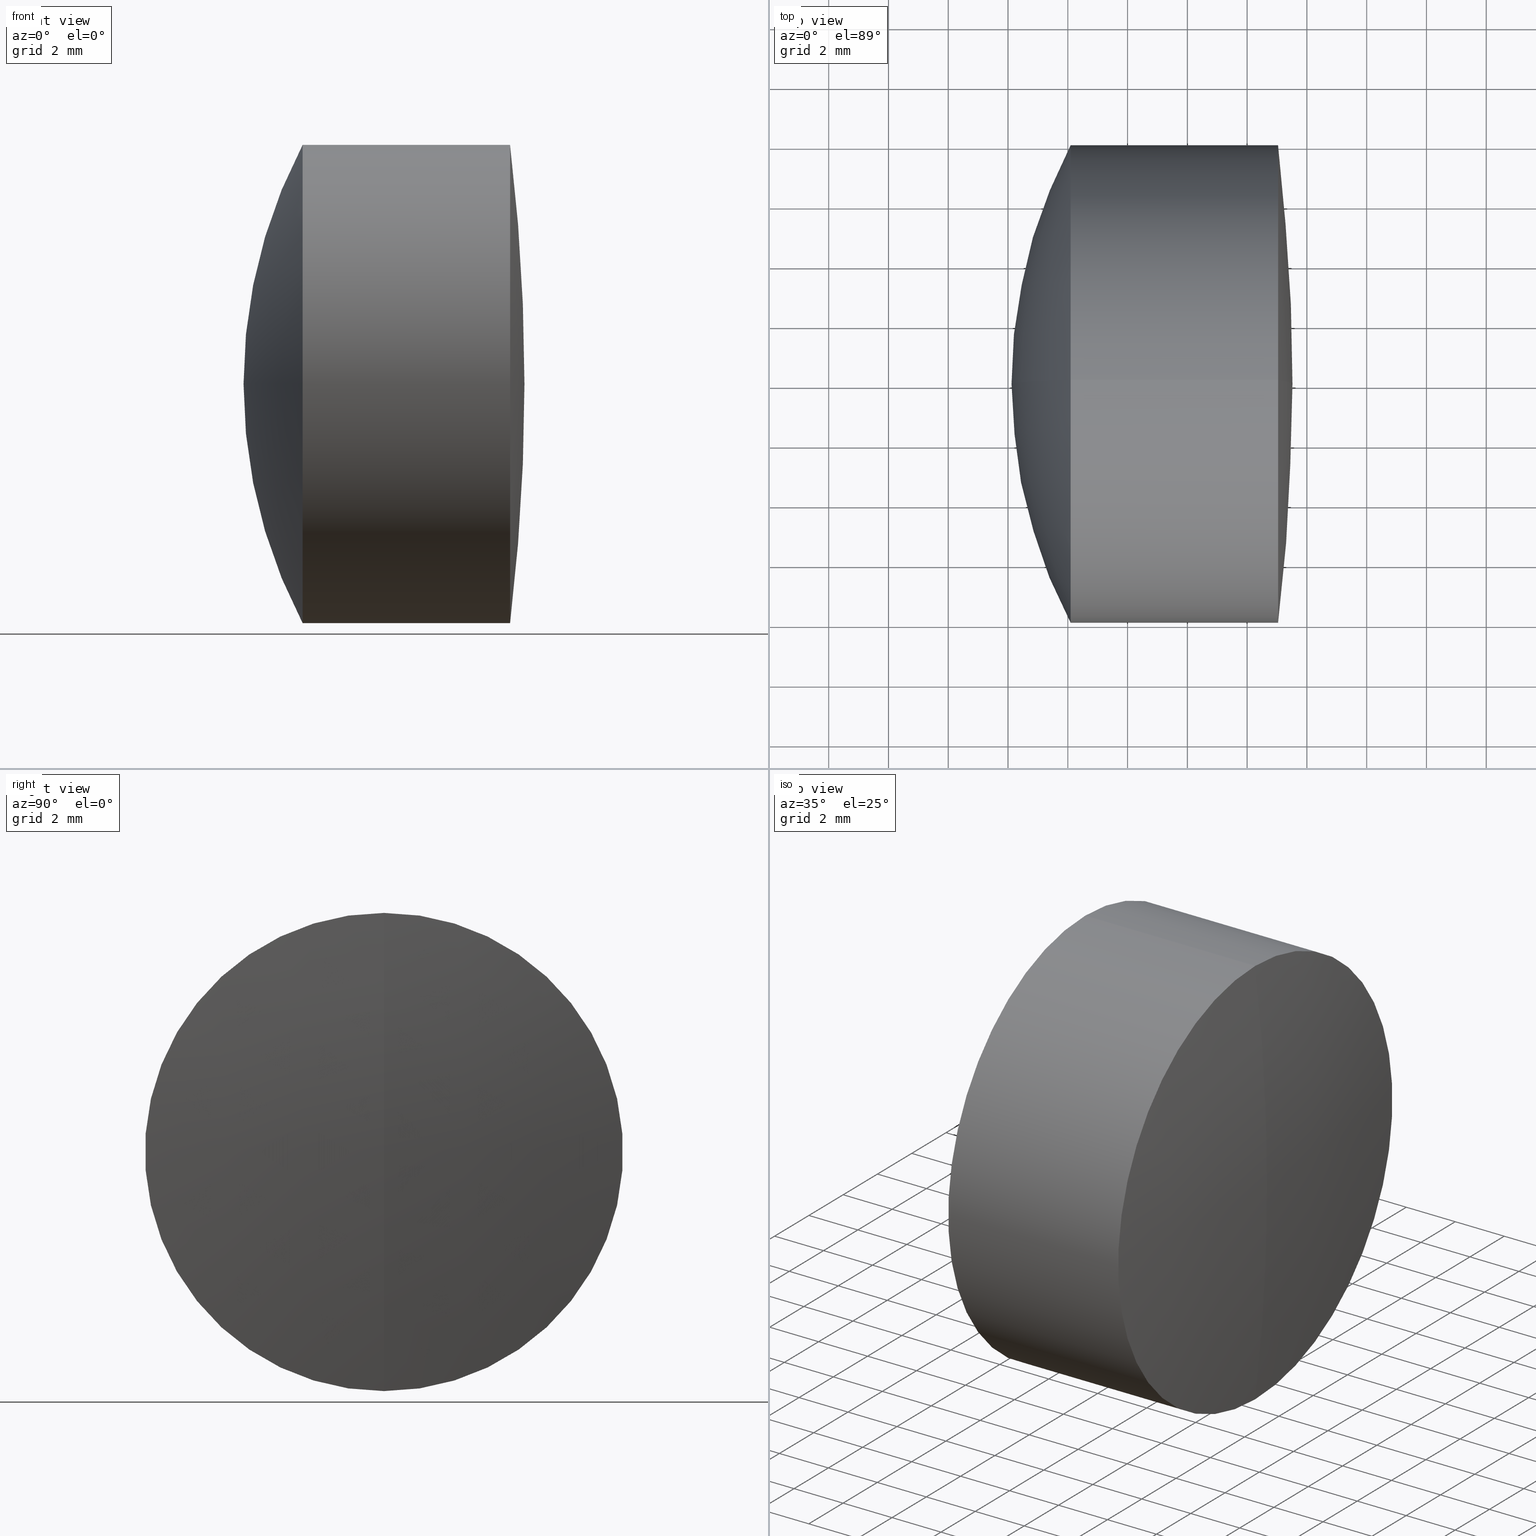
[diagram: canonical four-view strip — front | top / right | iso, engineering-drawing reading convention]
A machine part, canonical four-view strip (front | top / right | iso — engineering-drawing reading convention). The complete STEP part file that produces these views, byte-faithful:
ISO-10303-21;
HEADER;
FILE_DESCRIPTION (( 'STEP AP214' ),
    '1' );
FILE_NAME ('145030.STEP',
    '2019-05-11T02:57:41',
    ( 'user' ),
    ( '΢���й�' ),
    'SwSTEP 2.0',
    'SolidWorks 2016',
    '' );
FILE_SCHEMA (( 'AUTOMOTIVE_DESIGN' ));
ENDSEC;

DATA;
#1 = AXIS2_PLACEMENT_3D ( 'NONE', #264, #99, #319 ) ;
#2 = AXIS2_PLACEMENT_3D ( 'NONE', #43, #87, #6 ) ;
#3 = ORIENTED_EDGE ( 'NONE', *, *, #266, .T. ) ;
#4 = CIRCLE ( 'NONE', #20, 8.000000000000000000 ) ;
#5 = ORIENTED_EDGE ( 'NONE', *, *, #55, .T. ) ;
#6 = DIRECTION ( 'NONE',  ( 0.0000000000000000000, 0.0000000000000000000, -1.000000000000000000 ) ) ;
#7 = DIRECTION ( 'NONE',  ( 0.0000000000000000000, 0.0000000000000000000, 1.000000000000000000 ) ) ;
#8 = CYLINDRICAL_SURFACE ( 'NONE', #298, 8.000000000000000000 ) ;
#9 = DIRECTION ( 'NONE',  ( -1.000000000000000000, -0.0000000000000000000, -0.0000000000000000000 ) ) ;
#10 = AXIS2_PLACEMENT_3D ( 'NONE', #198, #161, #295 ) ;
#11 = CARTESIAN_POINT ( 'NONE',  ( 16.48846299245593300, 0.0000000000000000000, 0.0000000000000000000 ) ) ;
#12 = LINE ( 'NONE', #283, #121 ) ;
#13 = FILL_AREA_STYLE_COLOUR ( '', #33 ) ;
#14 = ORIENTED_EDGE ( 'NONE', *, *, #155, .T. ) ;
#15 = DIRECTION ( 'NONE',  ( 0.0000000000000000000, 0.0000000000000000000, -1.000000000000000000 ) ) ;
#16 = VERTEX_POINT ( 'NONE', #154 ) ;
#17 = DIRECTION ( 'NONE',  ( 0.0000000000000000000, 1.224646799147353200E-016, -1.000000000000000000 ) ) ;
#18 = FILL_AREA_STYLE ('',( #116 ) ) ;
#19 = EDGE_CURVE ( 'NONE', #105, #16, #52, .T. ) ;
#20 = AXIS2_PLACEMENT_3D ( 'NONE', #328, #137, #136 ) ;
#21 = SURFACE_SIDE_STYLE ('',( #108 ) ) ;
#22 = DIRECTION ( 'NONE',  ( -1.000000000000000000, -0.0000000000000000000, -0.0000000000000000000 ) ) ;
#23 = DIRECTION ( 'NONE',  ( -1.000000000000000000, -0.0000000000000000000, -0.0000000000000000000 ) ) ;
#24 = ADVANCED_FACE ( 'NONE', ( #134 ), #257, .T. ) ;
#25 = ORIENTED_EDGE ( 'NONE', *, *, #170, .T. ) ;
#26 = DIRECTION ( 'NONE',  ( -1.000000000000000000, -0.0000000000000000000, -0.0000000000000000000 ) ) ;
#27 = CARTESIAN_POINT ( 'NONE',  ( 21.03539995463979300, 0.0000000000000000000, 0.0000000000000000000 ) ) ;
#28 = CIRCLE ( 'NONE', #207, 7.999999999999992900 ) ;
#29 = FACE_OUTER_BOUND ( 'NONE', #346, .T. ) ;
#30 = FACE_OUTER_BOUND ( 'NONE', #98, .T. ) ;
#31 = AXIS2_PLACEMENT_3D ( 'NONE', #273, #250, #215 ) ;
#32 = CLOSED_SHELL ( 'NONE', ( #73, #96, #201, #49, #127, #343 ) ) ;
#33 = COLOUR_RGB ( '',1.000000000000000000, 1.000000000000000000, 1.000000000000000000 ) ;
#34 = UNCERTAINTY_MEASURE_WITH_UNIT (LENGTH_MEASURE( 1.000000000000000100E-005 ), #335, 'distance_accuracy_value', 'NONE');
#35 = EDGE_CURVE ( 'NONE', #153, #156, #230, .T. ) ;
#36 = DIRECTION ( 'NONE',  ( 0.0000000000000000000, 0.0000000000000000000, -1.000000000000000000 ) ) ;
#37 = AXIS2_PLACEMENT_3D ( 'NONE', #60, #81, #327 ) ;
#38 = CIRCLE ( 'NONE', #86, 66.68000000000000700 ) ;
#39 = ORIENTED_EDGE ( 'NONE', *, *, #179, .F. ) ;
#40 = ORIENTED_EDGE ( 'NONE', *, *, #302, .T. ) ;
#41 = DIRECTION ( 'NONE',  ( -1.000000000000000000, -0.0000000000000000000, -0.0000000000000000000 ) ) ;
#42 = SURFACE_SIDE_STYLE ('',( #340 ) ) ;
#43 = CARTESIAN_POINT ( 'NONE',  ( 29.29604347957312900, 0.0000000000000000000, 2.710505431219307800E-017 ) ) ;
#44 = CLOSED_SHELL ( 'NONE', ( #172, #231, #24, #290, #259, #151 ) ) ;
#45 =( NAMED_UNIT ( * ) SI_UNIT ( $, .STERADIAN. ) SOLID_ANGLE_UNIT ( ) );
#46 = SURFACE_STYLE_FILL_AREA ( #122 ) ;
#47 = UNCERTAINTY_MEASURE_WITH_UNIT (LENGTH_MEASURE( 1.000000000000000100E-005 ), #149, 'distance_accuracy_value', 'NONE');
#48 = DIRECTION ( 'NONE',  ( 0.0000000000000000000, 1.000000000000000000, 0.0000000000000000000 ) ) ;
#49 = ADVANCED_FACE ( 'NONE', ( #174 ), #59, .F. ) ;
#50 = ORIENTED_EDGE ( 'NONE', *, *, #254, .F. ) ;
#51 = DIRECTION ( 'NONE',  ( 0.0000000000000000000, 0.0000000000000000000, 1.000000000000000000 ) ) ;
#52 = CIRCLE ( 'NONE', #160, 8.000000000000000000 ) ;
#53 = DIRECTION ( 'NONE',  ( -1.000000000000000000, -0.0000000000000000000, -0.0000000000000000000 ) ) ;
#54 = CARTESIAN_POINT ( 'NONE',  ( 19.21704347957313200, 0.0000000000000000000, 7.745487404097199200E-016 ) ) ;
#55 = EDGE_CURVE ( 'NONE', #16, #158, #330, .T. ) ;
#56 = AXIS2_PLACEMENT_3D ( 'NONE', #211, #159, #176 ) ;
#57 = CARTESIAN_POINT ( 'NONE',  ( 16.48846299245593300, 0.0000000000000000000, 8.000000000000000000 ) ) ;
#58 = VERTEX_POINT ( 'NONE', #54 ) ;
#59 = SPHERICAL_SURFACE ( 'NONE', #1, 13.09200000000000200 ) ;
#60 = CARTESIAN_POINT ( 'NONE',  ( 6.125043479573127700, 0.0000000000000000000, -2.710505431213761100E-017 ) ) ;
#61 = SPHERICAL_SURFACE ( 'NONE', #342, 66.68000000000000700 ) ;
#62 = CARTESIAN_POINT ( 'NONE',  ( -45.16295652042687400, 0.0000000000000000000, 0.0000000000000000000 ) ) ;
#63 = SPHERICAL_SURFACE ( 'NONE', #72, 13.09200000000000200 ) ;
#64 = CARTESIAN_POINT ( 'NONE',  ( 14.09347655816146400, 0.0000000000000000000, 0.0000000000000000000 ) ) ;
#65 =( NAMED_UNIT ( * ) SI_UNIT ( $, .STERADIAN. ) SOLID_ANGLE_UNIT ( ) );
#66 = ORIENTED_EDGE ( 'NONE', *, *, #324, .T. ) ;
#67 = EDGE_LOOP ( 'NONE', ( #50, #317, #280 ) ) ;
#68 = DIRECTION ( 'NONE',  ( 0.0000000000000000000, 0.0000000000000000000, 1.000000000000000000 ) ) ;
#69 = SURFACE_SIDE_STYLE ('',( #46 ) ) ;
#70 = CARTESIAN_POINT ( 'NONE',  ( 0.0000000000000000000, 0.0000000000000000000, 0.0000000000000000000 ) ) ;
#71 = EDGE_CURVE ( 'NONE', #153, #272, #180, .T. ) ;
#72 = AXIS2_PLACEMENT_3D ( 'NONE', #232, #299, #248 ) ;
#73 = ADVANCED_FACE ( 'NONE', ( #129 ), #190, .T. ) ;
#74 = FACE_OUTER_BOUND ( 'NONE', #67, .T. ) ;
#75 = ORIENTED_EDGE ( 'NONE', *, *, #139, .T. ) ;
#76 = VECTOR ( 'NONE', #41, 1000.000000000000000 ) ;
#77 = EDGE_LOOP ( 'NONE', ( #113, #80, #162 ) ) ;
#78 =( GEOMETRIC_REPRESENTATION_CONTEXT ( 3 ) GLOBAL_UNCERTAINTY_ASSIGNED_CONTEXT ( ( #316 ) ) GLOBAL_UNIT_ASSIGNED_CONTEXT ( ( #309, #225, #45 ) ) REPRESENTATION_CONTEXT ( 'NONE', 'WORKASPACE' ) );
#79 = ORIENTED_EDGE ( 'NONE', *, *, #139, .F. ) ;
#80 = ORIENTED_EDGE ( 'NONE', *, *, #254, .T. ) ;
#81 = DIRECTION ( 'NONE',  ( 0.0000000000000000000, 1.000000000000000000, 0.0000000000000000000 ) ) ;
#82 = CARTESIAN_POINT ( 'NONE',  ( 21.03539995463979300, 9.797174393178819700E-016, -7.999999999999992900 ) ) ;
#83 = PRODUCT_DEFINITION_CONTEXT ( 'detailed design', #169, 'design' ) ;
#84 = LINE ( 'NONE', #107, #76 ) ;
#85 = AXIS2_PLACEMENT_3D ( 'NONE', #322, #293, #36 ) ;
#86 = AXIS2_PLACEMENT_3D ( 'NONE', #241, #146, #184 ) ;
#87 = DIRECTION ( 'NONE',  ( -0.0000000000000000000, -1.000000000000000000, -0.0000000000000000000 ) ) ;
#88 = SURFACE_STYLE_USAGE ( .BOTH. , #21 ) ;
#89 = DIRECTION ( 'NONE',  ( -1.000000000000000000, -0.0000000000000000000, -0.0000000000000000000 ) ) ;
#90 = PRODUCT_RELATED_PRODUCT_CATEGORY ( 'part', '', ( #214 ) ) ;
#91 = DIRECTION ( 'NONE',  ( 0.0000000000000000000, -1.224646799147353200E-016, 1.000000000000000000 ) ) ;
#92 = CARTESIAN_POINT ( 'NONE',  ( 21.03539995463979300, 0.0000000000000000000, 0.0000000000000000000 ) ) ;
#93 = DIRECTION ( 'NONE',  ( 0.0000000000000000000, -1.000000000000000000, 0.0000000000000000000 ) ) ;
#94 = CIRCLE ( 'NONE', #171, 8.000000000000000000 ) ;
#95 = DIRECTION ( 'NONE',  ( -0.0000000000000000000, 1.000000000000000000, 1.224646799147353200E-016 ) ) ;
#96 = ADVANCED_FACE ( 'NONE', ( #117 ), #103, .T. ) ;
#97 = ORIENTED_EDGE ( 'NONE', *, *, #194, .T. ) ;
#98 = EDGE_LOOP ( 'NONE', ( #271, #25, #282 ) ) ;
#99 = DIRECTION ( 'NONE',  ( 0.0000000000000000000, 1.000000000000000000, 0.0000000000000000000 ) ) ;
#100 = PRODUCT_DEFINITION_SHAPE ( 'NONE', 'NONE',  #152 ) ;
#101 = EDGE_CURVE ( 'NONE', #204, #165, #110, .T. ) ;
#102 = AXIS2_PLACEMENT_3D ( 'NONE', #106, #95, #91 ) ;
#103 = CYLINDRICAL_SURFACE ( 'NONE', #187, 7.999999999999996400 ) ;
#104 = ORIENTED_EDGE ( 'NONE', *, *, #288, .F. ) ;
#105 = VERTEX_POINT ( 'NONE', #287 ) ;
#106 = CARTESIAN_POINT ( 'NONE',  ( 6.125043479573127700, 0.0000000000000000000, -2.710505431213761100E-017 ) ) ;
#107 = CARTESIAN_POINT ( 'NONE',  ( -9.702612178336682500, 9.797174393178825700E-016, -8.000000000000000000 ) ) ;
#108 = SURFACE_STYLE_FILL_AREA ( #337 ) ;
#109 = EDGE_LOOP ( 'NONE', ( #144, #209, #347, #189 ) ) ;
#110 = CIRCLE ( 'NONE', #236, 13.09200000000000200 ) ;
#111 = CARTESIAN_POINT ( 'NONE',  ( -9.702612178336682500, 0.0000000000000000000, 0.0000000000000000000 ) ) ;
#112 = DIRECTION ( 'NONE',  ( 0.0000000000000000000, 0.0000000000000000000, 1.000000000000000000 ) ) ;
#113 = ORIENTED_EDGE ( 'NONE', *, *, #101, .F. ) ;
#114 = MECHANICAL_DESIGN_GEOMETRIC_PRESENTATION_REPRESENTATION (  '', ( #182 ), #78 ) ;
#115 = MANIFOLD_SOLID_BREP ( '��ת1', #44 ) ;
#116 = FILL_AREA_STYLE_COLOUR ( '', #276 ) ;
#117 = FACE_OUTER_BOUND ( 'NONE', #109, .T. ) ;
#118 =( NAMED_UNIT ( * ) PLANE_ANGLE_UNIT ( ) SI_UNIT ( $, .RADIAN. ) );
#119 = ORIENTED_EDGE ( 'NONE', *, *, #324, .F. ) ;
#120 = APPLICATION_PROTOCOL_DEFINITION ( 'draft international standard', 'automotive_design', 1998, #169 ) ;
#121 = VECTOR ( 'NONE', #278, 1000.000000000000000 ) ;
#122 = FILL_AREA_STYLE ('',( #338 ) ) ;
#123 = AXIS2_PLACEMENT_3D ( 'NONE', #62, #246, #191 ) ;
#124 = AXIS2_PLACEMENT_3D ( 'NONE', #175, #167, #166 ) ;
#125 = DIRECTION ( 'NONE',  ( -1.000000000000000000, -0.0000000000000000000, -0.0000000000000000000 ) ) ;
#126 = ORIENTED_EDGE ( 'NONE', *, *, #266, .F. ) ;
#127 = ADVANCED_FACE ( 'NONE', ( #243 ), #183, .T. ) ;
#128 = CARTESIAN_POINT ( 'NONE',  ( 21.51704347957313200, 0.0000000000000000000, 4.082972428357275800E-015 ) ) ;
#129 = FACE_OUTER_BOUND ( 'NONE', #333, .T. ) ;
#130 = VERTEX_POINT ( 'NONE', #315 ) ;
#131 = VERTEX_POINT ( 'NONE', #314 ) ;
#132 = CARTESIAN_POINT ( 'NONE',  ( 14.09347655816146400, 0.0000000000000000000, 0.0000000000000000000 ) ) ;
#133 = FACE_OUTER_BOUND ( 'NONE', #228, .T. ) ;
#134 = FACE_OUTER_BOUND ( 'NONE', #326, .T. ) ;
#135 = EDGE_LOOP ( 'NONE', ( #267, #277, #75, #126 ) ) ;
#136 = DIRECTION ( 'NONE',  ( 0.0000000000000000000, 0.0000000000000000000, 1.000000000000000000 ) ) ;
#137 = DIRECTION ( 'NONE',  ( -1.000000000000000000, -0.0000000000000000000, -0.0000000000000000000 ) ) ;
#138 = UNCERTAINTY_MEASURE_WITH_UNIT (LENGTH_MEASURE( 1.000000000000000100E-005 ), #199, 'distance_accuracy_value', 'NONE');
#139 = EDGE_CURVE ( 'NONE', #165, #105, #186, .T. ) ;
#140 = MECHANICAL_DESIGN_GEOMETRIC_PRESENTATION_REPRESENTATION (  '', ( #227 ), #229 ) ;
#141 = CARTESIAN_POINT ( 'NONE',  ( 6.125043479573127700, 0.0000000000000000000, -2.710505431213761100E-017 ) ) ;
#142 =( NAMED_UNIT ( * ) SI_UNIT ( $, .STERADIAN. ) SOLID_ANGLE_UNIT ( ) );
#143 = ORIENTED_EDGE ( 'NONE', *, *, #155, .F. ) ;
#144 = ORIENTED_EDGE ( 'NONE', *, *, #71, .T. ) ;
#145 = SURFACE_STYLE_USAGE ( .BOTH. , #42 ) ;
#146 = DIRECTION ( 'NONE',  ( -0.0000000000000000000, 1.000000000000000000, 1.224646799147353200E-016 ) ) ;
#147 = CARTESIAN_POINT ( 'NONE',  ( 6.125043479573127700, 0.0000000000000000000, -2.710505431213761100E-017 ) ) ;
#148 = CIRCLE ( 'NONE', #196, 17.17900000000000200 ) ;
#149 =( LENGTH_UNIT ( ) NAMED_UNIT ( * ) SI_UNIT ( .MILLI., .METRE. ) );
#150 =( NAMED_UNIT ( * ) PLANE_ANGLE_UNIT ( ) SI_UNIT ( $, .RADIAN. ) );
#151 = ADVANCED_FACE ( 'NONE', ( #74 ), #63, .T. ) ;
#152 = PRODUCT_DEFINITION ( 'δ֪', '', #233, #83 ) ;
#153 = VERTEX_POINT ( 'NONE', #262 ) ;
#154 = CARTESIAN_POINT ( 'NONE',  ( 14.09347655816146400, 0.0000000000000000000, -8.000000000000000000 ) ) ;
#155 = EDGE_CURVE ( 'NONE', #323, #272, #38, .T. ) ;
#156 = VERTEX_POINT ( 'NONE', #57 ) ;
#157 = DIRECTION ( 'NONE',  ( -1.000000000000000000, -0.0000000000000000000, -0.0000000000000000000 ) ) ;
#158 = VERTEX_POINT ( 'NONE', #270 ) ;
#159 = DIRECTION ( 'NONE',  ( -1.000000000000000000, -0.0000000000000000000, -0.0000000000000000000 ) ) ;
#160 = AXIS2_PLACEMENT_3D ( 'NONE', #132, #297, #234 ) ;
#161 = DIRECTION ( 'NONE',  ( 0.0000000000000000000, 1.000000000000000000, -0.0000000000000000000 ) ) ;
#162 = ORIENTED_EDGE ( 'NONE', *, *, #212, .F. ) ;
#163 = CARTESIAN_POINT ( 'NONE',  ( -45.16295652042687400, 0.0000000000000000000, 0.0000000000000000000 ) ) ;
#164 = PRESENTATION_LAYER_ASSIGNMENT (  '', '', ( #182 ) ) ;
#165 = VERTEX_POINT ( 'NONE', #217 ) ;
#166 = DIRECTION ( 'NONE',  ( 0.0000000000000000000, 0.0000000000000000000, -1.000000000000000000 ) ) ;
#167 = DIRECTION ( 'NONE',  ( 0.0000000000000000000, -1.000000000000000000, 0.0000000000000000000 ) ) ;
#168 = FACE_OUTER_BOUND ( 'NONE', #178, .T. ) ;
#169 = APPLICATION_CONTEXT ( 'automotive_design' ) ;
#170 = EDGE_CURVE ( 'NONE', #58, #131, #269, .T. ) ;
#171 = AXIS2_PLACEMENT_3D ( 'NONE', #64, #53, #51 ) ;
#172 = ADVANCED_FACE ( 'NONE', ( #303 ), #238, .T. ) ;
#173 = EDGE_LOOP ( 'NONE', ( #216, #202, #97 ) ) ;
#174 = FACE_OUTER_BOUND ( 'NONE', #173, .T. ) ;
#175 = CARTESIAN_POINT ( 'NONE',  ( 6.125043479573127700, 0.0000000000000000000, -2.710505431213761100E-017 ) ) ;
#176 = DIRECTION ( 'NONE',  ( 0.0000000000000000000, 0.0000000000000000000, 1.000000000000000000 ) ) ;
#177 = SHAPE_DEFINITION_REPRESENTATION ( #100, #296 ) ;
#178 = EDGE_LOOP ( 'NONE', ( #143, #294, #119 ) ) ;
#179 = EDGE_CURVE ( 'NONE', #272, #131, #12, .T. ) ;
#180 = CIRCLE ( 'NONE', #245, 7.999999999999992900 ) ;
#181 = ORIENTED_EDGE ( 'NONE', *, *, #71, .F. ) ;
#182 = STYLED_ITEM ( 'NONE', ( #291 ), #296 ) ;
#183 = CYLINDRICAL_SURFACE ( 'NONE', #289, 7.999999999999996400 ) ;
#184 = DIRECTION ( 'NONE',  ( 0.0000000000000000000, -1.224646799147353200E-016, 1.000000000000000000 ) ) ;
#185 = ORIENTED_EDGE ( 'NONE', *, *, #212, .T. ) ;
#186 = LINE ( 'NONE', #197, #200 ) ;
#187 = AXIS2_PLACEMENT_3D ( 'NONE', #226, #157, #223 ) ;
#188 = AXIS2_PLACEMENT_3D ( 'NONE', #11, #9, #7 ) ;
#189 = ORIENTED_EDGE ( 'NONE', *, *, #35, .F. ) ;
#190 = SPHERICAL_SURFACE ( 'NONE', #123, 66.68000000000000700 ) ;
#191 = DIRECTION ( 'NONE',  ( 0.0000000000000000000, 0.0000000000000000000, 1.000000000000000000 ) ) ;
#192 = DIRECTION ( 'NONE',  ( 0.0000000000000000000, -1.000000000000000000, -1.224646799147353200E-016 ) ) ;
#193 = APPLICATION_CONTEXT ( 'automotive_design' ) ;
#194 = EDGE_CURVE ( 'NONE', #156, #131, #301, .T. ) ;
#195 = CIRCLE ( 'NONE', #124, 13.09200000000000200 ) ;
#196 = AXIS2_PLACEMENT_3D ( 'NONE', #221, #192, #17 ) ;
#197 = CARTESIAN_POINT ( 'NONE',  ( -9.702612178336682500, 0.0000000000000000000, 8.000000000000000000 ) ) ;
#198 = CARTESIAN_POINT ( 'NONE',  ( 29.29604347957312900, 0.0000000000000000000, 2.710505431219307800E-017 ) ) ;
#199 =( LENGTH_UNIT ( ) NAMED_UNIT ( * ) SI_UNIT ( .MILLI., .METRE. ) );
#200 = VECTOR ( 'NONE', #23, 1000.000000000000000 ) ;
#201 = ADVANCED_FACE ( 'NONE', ( #30 ), #344, .F. ) ;
#202 = ORIENTED_EDGE ( 'NONE', *, *, #206, .T. ) ;
#203 = CARTESIAN_POINT ( 'NONE',  ( 19.21704347957313200, 0.0000000000000000000, 7.745487404097199200E-016 ) ) ;
#204 = VERTEX_POINT ( 'NONE', #203 ) ;
#205 = CARTESIAN_POINT ( 'NONE',  ( -0.5519199926577972300, 0.0000000000000000000, 7.999999999999996400 ) ) ;
#206 = EDGE_CURVE ( 'NONE', #58, #156, #195, .T. ) ;
#207 = AXIS2_PLACEMENT_3D ( 'NONE', #92, #251, #68 ) ;
#208 = COLOUR_RGB ( '',1.000000000000000000, 1.000000000000000000, 1.000000000000000000 ) ;
#209 = ORIENTED_EDGE ( 'NONE', *, *, #179, .T. ) ;
#210 = ORIENTED_EDGE ( 'NONE', *, *, #19, .F. ) ;
#211 = CARTESIAN_POINT ( 'NONE',  ( -9.702612178336682500, 0.0000000000000000000, 0.0000000000000000000 ) ) ;
#212 = EDGE_CURVE ( 'NONE', #165, #130, #4, .T. ) ;
#213 = AXIS2_PLACEMENT_3D ( 'NONE', #249, #89, #220 ) ;
#214 = PRODUCT ( '145030', '145030', '', ( #310 ) ) ;
#215 = DIRECTION ( 'NONE',  ( 0.0000000000000000000, 0.0000000000000000000, 1.000000000000000000 ) ) ;
#216 = ORIENTED_EDGE ( 'NONE', *, *, #170, .F. ) ;
#217 = CARTESIAN_POINT ( 'NONE',  ( 16.48846299245593300, 0.0000000000000000000, 8.000000000000000000 ) ) ;
#218 = DIRECTION ( 'NONE',  ( 0.0000000000000000000, 0.0000000000000000000, 1.000000000000000000 ) ) ;
#219 = ORIENTED_EDGE ( 'NONE', *, *, #341, .F. ) ;
#220 = DIRECTION ( 'NONE',  ( 0.0000000000000000000, 0.0000000000000000000, 1.000000000000000000 ) ) ;
#221 = CARTESIAN_POINT ( 'NONE',  ( 29.29604347957312900, 0.0000000000000000000, 2.710505431219307800E-017 ) ) ;
#222 = DIRECTION ( 'NONE',  ( 0.0000000000000000000, 0.0000000000000000000, 1.000000000000000000 ) ) ;
#223 = DIRECTION ( 'NONE',  ( 0.0000000000000000000, 0.0000000000000000000, 1.000000000000000000 ) ) ;
#224 = CYLINDRICAL_SURFACE ( 'NONE', #56, 8.000000000000000000 ) ;
#225 =( NAMED_UNIT ( * ) PLANE_ANGLE_UNIT ( ) SI_UNIT ( $, .RADIAN. ) );
#226 = CARTESIAN_POINT ( 'NONE',  ( -0.5519199926577972300, 0.0000000000000000000, 0.0000000000000000000 ) ) ;
#227 = STYLED_ITEM ( 'NONE', ( #244 ), #115 ) ;
#228 = EDGE_LOOP ( 'NONE', ( #258, #263, #5 ) ) ;
#229 =( GEOMETRIC_REPRESENTATION_CONTEXT ( 3 ) GLOBAL_UNCERTAINTY_ASSIGNED_CONTEXT ( ( #47 ) ) GLOBAL_UNIT_ASSIGNED_CONTEXT ( ( #149, #150, #65 ) ) REPRESENTATION_CONTEXT ( 'NONE', 'WORKASPACE' ) );
#230 = LINE ( 'NONE', #205, #260 ) ;
#231 = ADVANCED_FACE ( 'NONE', ( #29 ), #224, .T. ) ;
#232 = CARTESIAN_POINT ( 'NONE',  ( 6.125043479573127700, 0.0000000000000000000, -2.710505431213761100E-017 ) ) ;
#233 = PRODUCT_DEFINITION_FORMATION_WITH_SPECIFIED_SOURCE ( '�κ�', '', #214, .NOT_KNOWN. ) ;
#234 = DIRECTION ( 'NONE',  ( 0.0000000000000000000, 0.0000000000000000000, 1.000000000000000000 ) ) ;
#235 = CIRCLE ( 'NONE', #102, 13.09200000000000200 ) ;
#236 = AXIS2_PLACEMENT_3D ( 'NONE', #147, #93, #311 ) ;
#237 = PRESENTATION_LAYER_ASSIGNMENT (  '', '', ( #227 ) ) ;
#238 = SPHERICAL_SURFACE ( 'NONE', #37, 13.09200000000000200 ) ;
#239 = AXIS2_PLACEMENT_3D ( 'NONE', #70, #285, #286 ) ;
#240 = CARTESIAN_POINT ( 'NONE',  ( 16.48846299245593300, 0.0000000000000000000, 0.0000000000000000000 ) ) ;
#241 = CARTESIAN_POINT ( 'NONE',  ( -45.16295652042687400, 0.0000000000000000000, 0.0000000000000000000 ) ) ;
#242 = PRESENTATION_STYLE_ASSIGNMENT (( #88 ) ) ;
#243 = FACE_OUTER_BOUND ( 'NONE', #336, .T. ) ;
#244 = PRESENTATION_STYLE_ASSIGNMENT (( #308 ) ) ;
#245 = AXIS2_PLACEMENT_3D ( 'NONE', #27, #22, #339 ) ;
#246 = DIRECTION ( 'NONE',  ( 0.0000000000000000000, 1.000000000000000000, 0.0000000000000000000 ) ) ;
#247 = MECHANICAL_DESIGN_GEOMETRIC_PRESENTATION_REPRESENTATION (  '', ( #268 ), #325 ) ;
#248 = DIRECTION ( 'NONE',  ( 0.0000000000000000000, 0.0000000000000000000, 1.000000000000000000 ) ) ;
#249 = CARTESIAN_POINT ( 'NONE',  ( 16.48846299245593300, 0.0000000000000000000, 0.0000000000000000000 ) ) ;
#250 = DIRECTION ( 'NONE',  ( 0.0000000000000000000, 1.000000000000000000, 0.0000000000000000000 ) ) ;
#251 = DIRECTION ( 'NONE',  ( -1.000000000000000000, -0.0000000000000000000, -0.0000000000000000000 ) ) ;
#252 = SPHERICAL_SURFACE ( 'NONE', #2, 17.17900000000000200 ) ;
#253 = DIRECTION ( 'NONE',  ( -1.000000000000000000, -0.0000000000000000000, -0.0000000000000000000 ) ) ;
#254 = EDGE_CURVE ( 'NONE', #204, #130, #235, .T. ) ;
#255 = PRESENTATION_LAYER_ASSIGNMENT (  '', '', ( #268 ) ) ;
#256 = DIRECTION ( 'NONE',  ( 0.0000000000000000000, 0.0000000000000000000, 1.000000000000000000 ) ) ;
#257 = SPHERICAL_SURFACE ( 'NONE', #85, 17.17900000000000200 ) ;
#258 = ORIENTED_EDGE ( 'NONE', *, *, #302, .F. ) ;
#259 = ADVANCED_FACE ( 'NONE', ( #279 ), #8, .T. ) ;
#260 = VECTOR ( 'NONE', #320, 1000.000000000000000 ) ;
#261 = CARTESIAN_POINT ( 'NONE',  ( -0.5519199926577972300, 0.0000000000000000000, 0.0000000000000000000 ) ) ;
#262 = CARTESIAN_POINT ( 'NONE',  ( 21.03539995463979300, 0.0000000000000000000, 7.999999999999992900 ) ) ;
#263 = ORIENTED_EDGE ( 'NONE', *, *, #19, .T. ) ;
#264 = CARTESIAN_POINT ( 'NONE',  ( 6.125043479573127700, 0.0000000000000000000, -2.710505431213761100E-017 ) ) ;
#265 = CIRCLE ( 'NONE', #275, 66.68000000000000700 ) ;
#266 = EDGE_CURVE ( 'NONE', #16, #105, #94, .T. ) ;
#267 = ORIENTED_EDGE ( 'NONE', *, *, #274, .F. ) ;
#268 = STYLED_ITEM ( 'NONE', ( #242 ), #345 ) ;
#269 = CIRCLE ( 'NONE', #331, 13.09200000000000200 ) ;
#270 = CARTESIAN_POINT ( 'NONE',  ( 12.11704347957312500, 0.0000000000000000000, -1.024805313815426000E-015 ) ) ;
#271 = ORIENTED_EDGE ( 'NONE', *, *, #206, .F. ) ;
#272 = VERTEX_POINT ( 'NONE', #82 ) ;
#273 = CARTESIAN_POINT ( 'NONE',  ( 6.125043479573127700, 0.0000000000000000000, -2.710505431213761100E-017 ) ) ;
#274 = EDGE_CURVE ( 'NONE', #130, #16, #84, .T. ) ;
#275 = AXIS2_PLACEMENT_3D ( 'NONE', #163, #334, #15 ) ;
#276 = COLOUR_RGB ( '',1.000000000000000000, 1.000000000000000000, 1.000000000000000000 ) ;
#277 = ORIENTED_EDGE ( 'NONE', *, *, #312, .T. ) ;
#278 = DIRECTION ( 'NONE',  ( -1.000000000000000000, -0.0000000000000000000, -0.0000000000000000000 ) ) ;
#279 = FACE_OUTER_BOUND ( 'NONE', #135, .T. ) ;
#280 = ORIENTED_EDGE ( 'NONE', *, *, #312, .F. ) ;
#281 =( NAMED_UNIT ( * ) SI_UNIT ( $, .STERADIAN. ) SOLID_ANGLE_UNIT ( ) );
#282 = ORIENTED_EDGE ( 'NONE', *, *, #288, .T. ) ;
#283 = CARTESIAN_POINT ( 'NONE',  ( -0.5519199926577972300, 9.797174393178821700E-016, -7.999999999999996400 ) ) ;
#284 = CARTESIAN_POINT ( 'NONE',  ( -45.16295652042687400, 0.0000000000000000000, 0.0000000000000000000 ) ) ;
#285 = DIRECTION ( 'NONE',  ( 0.0000000000000000000, 0.0000000000000000000, 1.000000000000000000 ) ) ;
#286 = DIRECTION ( 'NONE',  ( 1.000000000000000000, 0.0000000000000000000, 0.0000000000000000000 ) ) ;
#287 = CARTESIAN_POINT ( 'NONE',  ( 14.09347655816146400, -9.797174393178823700E-016, 8.000000000000000000 ) ) ;
#288 = EDGE_CURVE ( 'NONE', #131, #156, #300, .T. ) ;
#289 = AXIS2_PLACEMENT_3D ( 'NONE', #261, #253, #256 ) ;
#290 = ADVANCED_FACE ( 'NONE', ( #133 ), #252, .T. ) ;
#291 = PRESENTATION_STYLE_ASSIGNMENT (( #145 ) ) ;
#292 = ORIENTED_EDGE ( 'NONE', *, *, #55, .F. ) ;
#293 = DIRECTION ( 'NONE',  ( -0.0000000000000000000, -1.000000000000000000, -0.0000000000000000000 ) ) ;
#294 = ORIENTED_EDGE ( 'NONE', *, *, #341, .T. ) ;
#295 = DIRECTION ( 'NONE',  ( 0.0000000000000000000, 0.0000000000000000000, 1.000000000000000000 ) ) ;
#296 = ADVANCED_BREP_SHAPE_REPRESENTATION ( '145030', ( #115, #345, #239 ), #304 ) ;
#297 = DIRECTION ( 'NONE',  ( -1.000000000000000000, -0.0000000000000000000, -0.0000000000000000000 ) ) ;
#298 = AXIS2_PLACEMENT_3D ( 'NONE', #111, #125, #112 ) ;
#299 = DIRECTION ( 'NONE',  ( 0.0000000000000000000, 1.000000000000000000, 0.0000000000000000000 ) ) ;
#300 = CIRCLE ( 'NONE', #188, 8.000000000000000000 ) ;
#301 = CIRCLE ( 'NONE', #313, 8.000000000000000000 ) ;
#302 = EDGE_CURVE ( 'NONE', #105, #158, #148, .T. ) ;
#303 = FACE_OUTER_BOUND ( 'NONE', #77, .T. ) ;
#304 =( GEOMETRIC_REPRESENTATION_CONTEXT ( 3 ) GLOBAL_UNCERTAINTY_ASSIGNED_CONTEXT ( ( #138 ) ) GLOBAL_UNIT_ASSIGNED_CONTEXT ( ( #199, #118, #281 ) ) REPRESENTATION_CONTEXT ( 'NONE', 'WORKASPACE' ) );
#305 = ORIENTED_EDGE ( 'NONE', *, *, #35, .T. ) ;
#306 =( NAMED_UNIT ( * ) PLANE_ANGLE_UNIT ( ) SI_UNIT ( $, .RADIAN. ) );
#307 = APPLICATION_PROTOCOL_DEFINITION ( 'draft international standard', 'automotive_design', 1998, #193 ) ;
#308 = SURFACE_STYLE_USAGE ( .BOTH. , #69 ) ;
#309 =( LENGTH_UNIT ( ) NAMED_UNIT ( * ) SI_UNIT ( .MILLI., .METRE. ) );
#310 = PRODUCT_CONTEXT ( 'NONE', #193, 'mechanical' ) ;
#311 = DIRECTION ( 'NONE',  ( 0.0000000000000000000, 0.0000000000000000000, -1.000000000000000000 ) ) ;
#312 = EDGE_CURVE ( 'NONE', #130, #165, #321, .T. ) ;
#313 = AXIS2_PLACEMENT_3D ( 'NONE', #240, #26, #222 ) ;
#314 = CARTESIAN_POINT ( 'NONE',  ( 16.48846299245593300, 9.797174393178827600E-016, -8.000000000000000000 ) ) ;
#315 = CARTESIAN_POINT ( 'NONE',  ( 16.48846299245593300, 9.797174393178825700E-016, -8.000000000000000000 ) ) ;
#316 = UNCERTAINTY_MEASURE_WITH_UNIT (LENGTH_MEASURE( 1.000000000000000100E-005 ), #309, 'distance_accuracy_value', 'NONE');
#317 = ORIENTED_EDGE ( 'NONE', *, *, #101, .T. ) ;
#318 = ORIENTED_EDGE ( 'NONE', *, *, #274, .T. ) ;
#319 = DIRECTION ( 'NONE',  ( 0.0000000000000000000, 0.0000000000000000000, 1.000000000000000000 ) ) ;
#320 = DIRECTION ( 'NONE',  ( -1.000000000000000000, -0.0000000000000000000, -0.0000000000000000000 ) ) ;
#321 = CIRCLE ( 'NONE', #213, 8.000000000000000000 ) ;
#322 = CARTESIAN_POINT ( 'NONE',  ( 29.29604347957312900, 0.0000000000000000000, 2.710505431219307800E-017 ) ) ;
#323 = VERTEX_POINT ( 'NONE', #128 ) ;
#324 = EDGE_CURVE ( 'NONE', #272, #153, #28, .T. ) ;
#325 =( GEOMETRIC_REPRESENTATION_CONTEXT ( 3 ) GLOBAL_UNCERTAINTY_ASSIGNED_CONTEXT ( ( #34 ) ) GLOBAL_UNIT_ASSIGNED_CONTEXT ( ( #335, #306, #142 ) ) REPRESENTATION_CONTEXT ( 'NONE', 'WORKASPACE' ) );
#326 = EDGE_LOOP ( 'NONE', ( #3, #40, #292 ) ) ;
#327 = DIRECTION ( 'NONE',  ( 0.0000000000000000000, 0.0000000000000000000, 1.000000000000000000 ) ) ;
#328 = CARTESIAN_POINT ( 'NONE',  ( 16.48846299245593300, 0.0000000000000000000, 0.0000000000000000000 ) ) ;
#329 = DIRECTION ( 'NONE',  ( 0.0000000000000000000, -1.224646799147353200E-016, 1.000000000000000000 ) ) ;
#330 = CIRCLE ( 'NONE', #10, 17.17900000000000200 ) ;
#331 = AXIS2_PLACEMENT_3D ( 'NONE', #141, #332, #329 ) ;
#332 = DIRECTION ( 'NONE',  ( -0.0000000000000000000, 1.000000000000000000, 1.224646799147353200E-016 ) ) ;
#333 = EDGE_LOOP ( 'NONE', ( #219, #14, #181 ) ) ;
#334 = DIRECTION ( 'NONE',  ( 0.0000000000000000000, -1.000000000000000000, 0.0000000000000000000 ) ) ;
#335 =( LENGTH_UNIT ( ) NAMED_UNIT ( * ) SI_UNIT ( .MILLI., .METRE. ) );
#336 = EDGE_LOOP ( 'NONE', ( #39, #66, #305, #104 ) ) ;
#337 = FILL_AREA_STYLE ('',( #13 ) ) ;
#338 = FILL_AREA_STYLE_COLOUR ( '', #208 ) ;
#339 = DIRECTION ( 'NONE',  ( 0.0000000000000000000, 0.0000000000000000000, 1.000000000000000000 ) ) ;
#340 = SURFACE_STYLE_FILL_AREA ( #18 ) ;
#341 = EDGE_CURVE ( 'NONE', #323, #153, #265, .T. ) ;
#342 = AXIS2_PLACEMENT_3D ( 'NONE', #284, #48, #218 ) ;
#343 = ADVANCED_FACE ( 'NONE', ( #168 ), #61, .T. ) ;
#344 = SPHERICAL_SURFACE ( 'NONE', #31, 13.09200000000000200 ) ;
#345 = MANIFOLD_SOLID_BREP ( '��ת3', #32 ) ;
#346 = EDGE_LOOP ( 'NONE', ( #185, #318, #210, #79 ) ) ;
#347 = ORIENTED_EDGE ( 'NONE', *, *, #194, .F. ) ;
ENDSEC;
END-ISO-10303-21;
